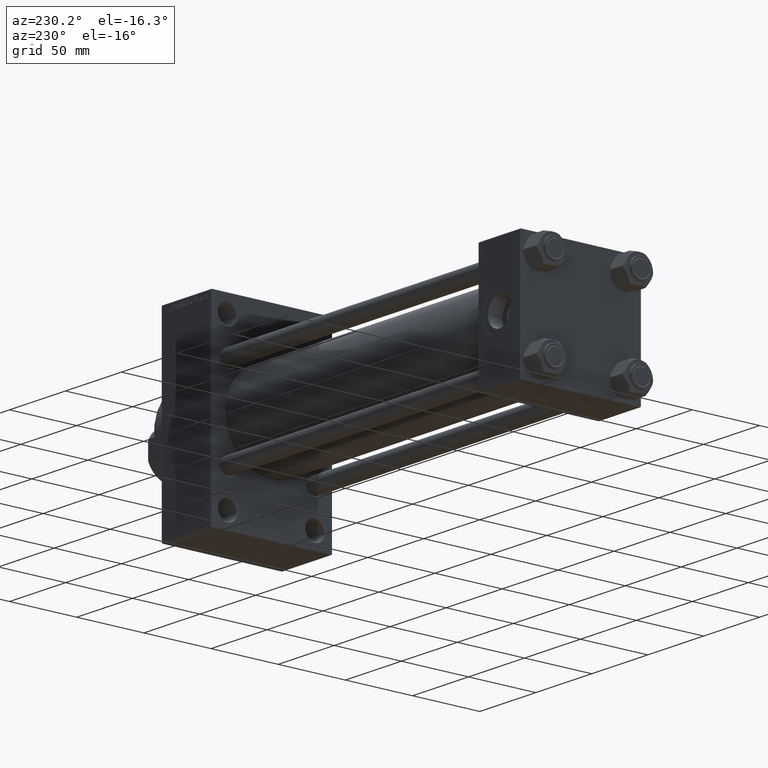
[diagram: clean part render]
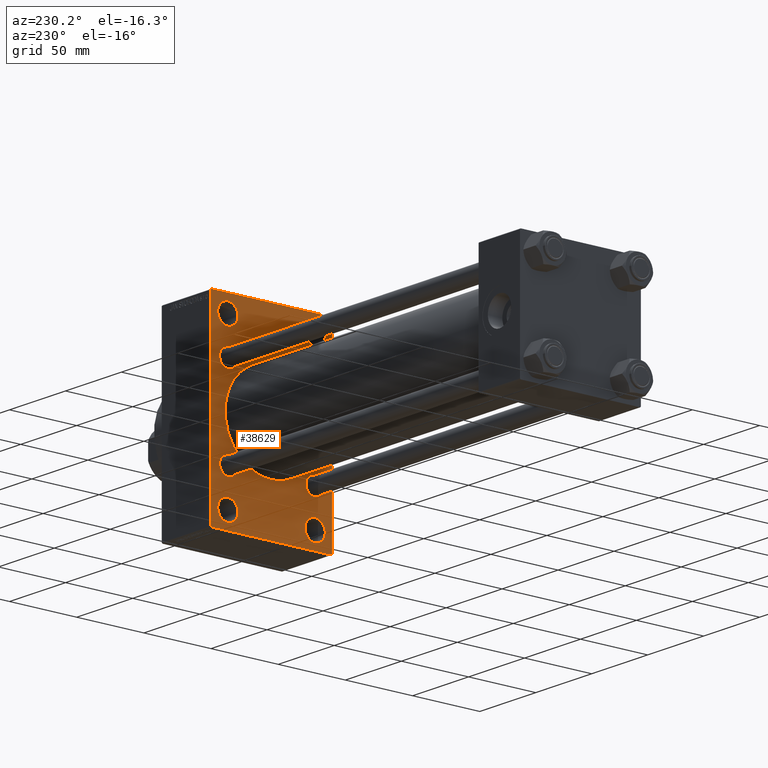
[diagram: same view with one face highlighted and labeled with its STEP entity id]
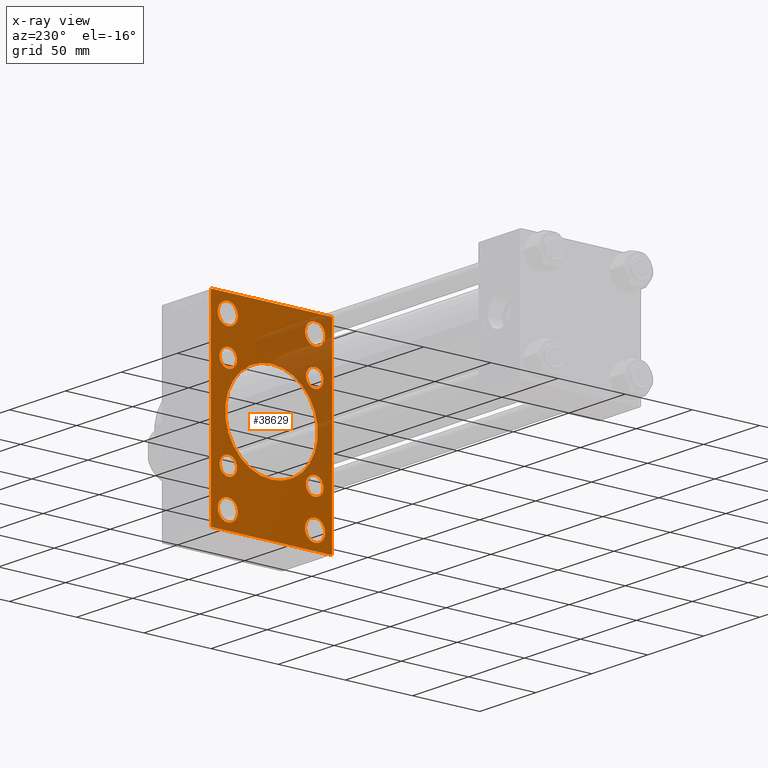
[diagram: x-ray of the same camera — body ghosted, the highlighted face saturated]
A machine part, auxiliary view. The second image highlights one B-rep face of the part: STEP entity #38629.
The next image is the same camera in x-ray: the body ghosted, the highlighted face saturated — about 25% of this face is hidden behind the body in this view.
In plain terms, the highlighted planar face has unit normal (-1, 0, 0).
Its self-contained STEP definition (entity closure, byte-faithful):
#186 = DIRECTION ( 'NONE',  ( -1.000000000000000000, 0.000000000000000000, -0.000000000000000000 ) ) ;
#264 = ORIENTED_EDGE ( 'NONE', *, *, #7171, .T. ) ;
#275 = DIRECTION ( 'NONE',  ( 0.000000000000000000, -4.886545002751570165E-17, -1.000000000000000000 ) ) ;
#543 = AXIS2_PLACEMENT_3D ( 'NONE', #21102, #35903, #28283 ) ;
#576 = VERTEX_POINT ( 'NONE', #39814 ) ;
#577 = LINE ( 'NONE', #11983, #27817 ) ;
#897 = FACE_BOUND ( 'NONE', #25571, .T. ) ;
#931 = VERTEX_POINT ( 'NONE', #36399 ) ;
#1107 = VERTEX_POINT ( 'NONE', #11313 ) ;
#1813 = AXIS2_PLACEMENT_3D ( 'NONE', #32994, #47097, #29172 ) ;
#1970 = ORIENTED_EDGE ( 'NONE', *, *, #47030, .T. ) ;
#2045 = DIRECTION ( 'NONE',  ( 0.000000000000000000, -0.7071067811865965336, 0.7071067811864985009 ) ) ;
#2375 = VERTEX_POINT ( 'NONE', #10046 ) ;
#2400 = VERTEX_POINT ( 'NONE', #35811 ) ;
#2835 = DIRECTION ( 'NONE',  ( 0.000000000000000000, -1.000000000000000000, -1.541976423090495633E-16 ) ) ;
#2862 = EDGE_CURVE ( 'NONE', #931, #18170, #14224, .T. ) ;
#2944 = VECTOR ( 'NONE', #21779, 1000.000000000000000 ) ;
#3114 = CARTESIAN_POINT ( 'NONE',  ( 275.9999999999999432, -44.49999999999995026, 70.99999999999998579 ) ) ;
#3700 = VERTEX_POINT ( 'NONE', #33066 ) ;
#3742 = FACE_BOUND ( 'NONE', #46012, .T. ) ;
#3999 = ORIENTED_EDGE ( 'NONE', *, *, #41740, .T. ) ;
#4213 = FACE_BOUND ( 'NONE', #23040, .T. ) ;
#4216 = DIRECTION ( 'NONE',  ( 1.000000000000000000, 0.000000000000000000, 0.000000000000000000 ) ) ;
#4254 = DIRECTION ( 'NONE',  ( 0.000000000000000000, 0.000000000000000000, 1.000000000000000000 ) ) ;
#4531 = CIRCLE ( 'NONE', #30439, 7.500000000000062172 ) ;
#4705 = ORIENTED_EDGE ( 'NONE', *, *, #30532, .T. ) ;
#4958 = CARTESIAN_POINT ( 'NONE',  ( 275.9999999999999432, 32.50000000000000711, 50.99999999999995026 ) ) ;
#5371 = DIRECTION ( 'NONE',  ( 0.000000000000000000, 0.000000000000000000, 1.000000000000000000 ) ) ;
#5449 = ORIENTED_EDGE ( 'NONE', *, *, #12043, .T. ) ;
#5527 = EDGE_CURVE ( 'NONE', #2400, #18471, #8987, .T. ) ;
#6086 = CARTESIAN_POINT ( 'NONE',  ( 275.9999999999999432, -32.50000000000000000, 58.50000000000000711 ) ) ;
#6391 = EDGE_LOOP ( 'NONE', ( #1970, #9623 ) ) ;
#6782 = AXIS2_PLACEMENT_3D ( 'NONE', #12503, #23038, #23729 ) ;
#7171 = EDGE_CURVE ( 'NONE', #20823, #13298, #42474, .T. ) ;
#7305 = FACE_BOUND ( 'NONE', #19551, .T. ) ;
#7542 = FACE_BOUND ( 'NONE', #22221, .T. ) ;
#8001 = ORIENTED_EDGE ( 'NONE', *, *, #30211, .T. ) ;
#8415 = CARTESIAN_POINT ( 'NONE',  ( 275.9999999999999432, -44.49999999999988631, -71.00000000000000000 ) ) ;
#8492 = LINE ( 'NONE', #33574, #43242 ) ;
#8681 = DIRECTION ( 'NONE',  ( 0.000000000000000000, 0.000000000000000000, 1.000000000000000000 ) ) ;
#8987 = CIRCLE ( 'NONE', #29611, 6.500000000000005329 ) ;
#9018 = CARTESIAN_POINT ( 'NONE',  ( 275.9999999999999432, -32.14999999999997726, 32.15000000000001279 ) ) ;
#9261 = DIRECTION ( 'NONE',  ( 1.000000000000000000, -0.000000000000000000, 0.000000000000000000 ) ) ;
#9623 = ORIENTED_EDGE ( 'NONE', *, *, #24052, .T. ) ;
#9785 = CARTESIAN_POINT ( 'NONE',  ( 275.9999999999999432, 45.00000000000002132, 70.50000000000000000 ) ) ;
#10046 = CARTESIAN_POINT ( 'NONE',  ( 275.9999999999999432, 32.50000000000000711, 66.00000000000007105 ) ) ;
#10120 = VERTEX_POINT ( 'NONE', #10768 ) ;
#10480 = VERTEX_POINT ( 'NONE', #3114 ) ;
#10583 = LINE ( 'NONE', #39705, #19820 ) ;
#10768 = CARTESIAN_POINT ( 'NONE',  ( 275.9999999999999432, -32.14999999999997726, -25.65000000000000568 ) ) ;
#11313 = CARTESIAN_POINT ( 'NONE',  ( 275.9999999999999432, 44.49999999999996447, 71.00000000000000000 ) ) ;
#11327 = DIRECTION ( 'NONE',  ( 1.000000000000000000, -0.000000000000000000, 0.000000000000000000 ) ) ;
#11477 = CARTESIAN_POINT ( 'NONE',  ( 275.9999999999999432, 57.74999999999750599, 57.75000000000390799 ) ) ;
#11832 = FACE_OUTER_BOUND ( 'NONE', #19151, .T. ) ;
#11888 = CIRCLE ( 'NONE', #44688, 34.50000000000000000 ) ;
#11983 = CARTESIAN_POINT ( 'NONE',  ( 275.9999999999999432, 45.00000000000002132, 71.00000000000000000 ) ) ;
#11990 = CIRCLE ( 'NONE', #31785, 6.500000000000005329 ) ;
#12043 = EDGE_CURVE ( 'NONE', #42578, #42333, #27328, .T. ) ;
#12103 = EDGE_CURVE ( 'NONE', #39510, #576, #4531, .T. ) ;
#12503 = CARTESIAN_POINT ( 'NONE',  ( 275.9999999999999432, 32.14999999999999147, 32.15000000000000568 ) ) ;
#12596 = ORIENTED_EDGE ( 'NONE', *, *, #12103, .T. ) ;
#12892 = AXIS2_PLACEMENT_3D ( 'NONE', #22577, #186, #36894 ) ;
#13298 = VERTEX_POINT ( 'NONE', #19665 ) ;
#13791 = EDGE_LOOP ( 'NONE', ( #4705, #8001 ) ) ;
#13793 = DIRECTION ( 'NONE',  ( 1.000000000000000000, -0.000000000000000000, 0.000000000000000000 ) ) ;
#13840 = ORIENTED_EDGE ( 'NONE', *, *, #28142, .T. ) ;
#14077 = EDGE_CURVE ( 'NONE', #17469, #23012, #10583, .T. ) ;
#14079 = DIRECTION ( 'NONE',  ( 0.000000000000000000, 0.000000000000000000, 1.000000000000000000 ) ) ;
#14224 = CIRCLE ( 'NONE', #30977, 6.499999999999999112 ) ;
#14287 = EDGE_CURVE ( 'NONE', #13298, #20823, #31250, .T. ) ;
#14471 = FACE_BOUND ( 'NONE', #6391, .T. ) ;
#14708 = DIRECTION ( 'NONE',  ( 0.000000000000000000, 0.000000000000000000, -1.000000000000000000 ) ) ;
#14803 = EDGE_CURVE ( 'NONE', #3700, #24001, #17567, .T. ) ;
#14848 = CARTESIAN_POINT ( 'NONE',  ( 275.9999999999999432, 32.50000000000000711, 58.50000000000000711 ) ) ;
#14905 = ORIENTED_EDGE ( 'NONE', *, *, #32784, .T. ) ;
#15244 = ORIENTED_EDGE ( 'NONE', *, *, #28568, .T. ) ;
#15386 = CARTESIAN_POINT ( 'NONE',  ( 275.9999999999999432, 32.50000000000000711, -58.50000000000000000 ) ) ;
#15764 = AXIS2_PLACEMENT_3D ( 'NONE', #28172, #35546, #42733 ) ;
#16030 = VECTOR ( 'NONE', #275, 1000.000000000000000 ) ;
#16346 = CARTESIAN_POINT ( 'NONE',  ( 275.9999999999999432, -57.74999999999687361, -57.75000000000488853 ) ) ;
#16560 = DIRECTION ( 'NONE',  ( 1.000000000000000000, -0.000000000000000000, 0.000000000000000000 ) ) ;
#16752 = ORIENTED_EDGE ( 'NONE', *, *, #44456, .T. ) ;
#17076 = ORIENTED_EDGE ( 'NONE', *, *, #21426, .F. ) ;
#17469 = VERTEX_POINT ( 'NONE', #36000 ) ;
#17567 = CIRCLE ( 'NONE', #43475, 7.500000000000062172 ) ;
#17620 = DIRECTION ( 'NONE',  ( 0.000000000000000000, 0.000000000000000000, 1.000000000000000000 ) ) ;
#18170 = VERTEX_POINT ( 'NONE', #42605 ) ;
#18322 = CIRCLE ( 'NONE', #19080, 6.500000000000005329 ) ;
#18471 = VERTEX_POINT ( 'NONE', #32266 ) ;
#18568 = DIRECTION ( 'NONE',  ( 1.000000000000000000, -0.000000000000000000, 0.000000000000000000 ) ) ;
#18759 = FACE_BOUND ( 'NONE', #28117, .T. ) ;
#18970 = DIRECTION ( 'NONE',  ( 0.000000000000000000, 0.000000000000000000, 1.000000000000000000 ) ) ;
#19080 = AXIS2_PLACEMENT_3D ( 'NONE', #42693, #13793, #17620 ) ;
#19151 = EDGE_LOOP ( 'NONE', ( #13840, #5449, #32304, #14905, #17076, #34782, #16752, #20280 ) ) ;
#19443 = AXIS2_PLACEMENT_3D ( 'NONE', #15386, #11327, #18970 ) ;
#19551 = EDGE_LOOP ( 'NONE', ( #27137, #264 ) ) ;
#19589 = VERTEX_POINT ( 'NONE', #33697 ) ;
#19665 = CARTESIAN_POINT ( 'NONE',  ( 275.9999999999999432, -32.50000000000000000, -50.99999999999992184 ) ) ;
#19820 = VECTOR ( 'NONE', #45945, 999.9999999999998863 ) ;
#19844 = DIRECTION ( 'NONE',  ( 0.000000000000000000, 0.000000000000000000, 1.000000000000000000 ) ) ;
#20134 = CARTESIAN_POINT ( 'NONE',  ( 275.9999999999999432, 32.14999999999999147, -32.15000000000000568 ) ) ;
#20280 = ORIENTED_EDGE ( 'NONE', *, *, #14077, .T. ) ;
#20638 = CARTESIAN_POINT ( 'NONE',  ( 275.9999999999999432, -32.14999999999997726, -38.65000000000001990 ) ) ;
#20823 = VERTEX_POINT ( 'NONE', #39863 ) ;
#21102 = CARTESIAN_POINT ( 'NONE',  ( 275.9999999999999432, -32.50000000000000000, 58.50000000000000711 ) ) ;
#21426 = EDGE_CURVE ( 'NONE', #1107, #10480, #577, .T. ) ;
#21773 = ORIENTED_EDGE ( 'NONE', *, *, #31584, .T. ) ;
#21779 = DIRECTION ( 'NONE',  ( 0.000000000000000000, 0.000000000000000000, -1.000000000000000000 ) ) ;
#21902 = CARTESIAN_POINT ( 'NONE',  ( 275.9999999999999432, 32.14999999999999147, 32.15000000000000568 ) ) ;
#22221 = EDGE_LOOP ( 'NONE', ( #12596, #21773 ) ) ;
#22316 = DIRECTION ( 'NONE',  ( 0.000000000000000000, 0.000000000000000000, 1.000000000000000000 ) ) ;
#22463 = VECTOR ( 'NONE', #37239, 1000.000000000000000 ) ;
#22577 = CARTESIAN_POINT ( 'NONE',  ( 275.9999999999999432, 0.000000000000000000, 0.000000000000000000 ) ) ;
#22734 = EDGE_CURVE ( 'NONE', #1107, #43507, #26271, .T. ) ;
#22832 = DIRECTION ( 'NONE',  ( -0.000000000000000000, 0.7071067811865426878, 0.7071067811865524577 ) ) ;
#23012 = VERTEX_POINT ( 'NONE', #25495 ) ;
#23038 = DIRECTION ( 'NONE',  ( 1.000000000000000000, -0.000000000000000000, 0.000000000000000000 ) ) ;
#23040 = EDGE_LOOP ( 'NONE', ( #41154, #3999 ) ) ;
#23101 = DIRECTION ( 'NONE',  ( 1.000000000000000000, 0.000000000000000000, 0.000000000000000000 ) ) ;
#23571 = EDGE_CURVE ( 'NONE', #2375, #36125, #26282, .T. ) ;
#23670 = CARTESIAN_POINT ( 'NONE',  ( 275.9999999999999432, -32.50000000000000000, -58.49999999999999289 ) ) ;
#23729 = DIRECTION ( 'NONE',  ( 0.000000000000000000, 0.000000000000000000, 1.000000000000000000 ) ) ;
#24001 = VERTEX_POINT ( 'NONE', #39673 ) ;
#24052 = EDGE_CURVE ( 'NONE', #35418, #39195, #40795, .T. ) ;
#24079 = CARTESIAN_POINT ( 'NONE',  ( 275.9999999999999432, 32.50000000000000711, 58.50000000000000711 ) ) ;
#24437 = CARTESIAN_POINT ( 'NONE',  ( 275.9999999999999432, -44.99999999999997158, -70.50000000000000000 ) ) ;
#25495 = CARTESIAN_POINT ( 'NONE',  ( 275.9999999999999432, 44.50000000000001421, -70.99999999999998579 ) ) ;
#25571 = EDGE_LOOP ( 'NONE', ( #40732, #44681 ) ) ;
#25830 = DIRECTION ( 'NONE',  ( 1.000000000000000000, -0.000000000000000000, 0.000000000000000000 ) ) ;
#25923 = PLANE ( 'NONE',  #12892 ) ;
#25991 = CARTESIAN_POINT ( 'NONE',  ( 275.9999999999999432, -32.50000000000000000, 66.00000000000007105 ) ) ;
#26218 = DIRECTION ( 'NONE',  ( 0.000000000000000000, 0.000000000000000000, 1.000000000000000000 ) ) ;
#26271 = LINE ( 'NONE', #11477, #22463 ) ;
#26282 = CIRCLE ( 'NONE', #30099, 7.500000000000062172 ) ;
#26909 = CARTESIAN_POINT ( 'NONE',  ( 275.9999999999999432, 32.50000000000000711, -58.50000000000000000 ) ) ;
#27137 = ORIENTED_EDGE ( 'NONE', *, *, #14287, .T. ) ;
#27140 = CIRCLE ( 'NONE', #40104, 34.50000000000000000 ) ;
#27167 = DIRECTION ( 'NONE',  ( 0.000000000000000000, 0.000000000000000000, 1.000000000000000000 ) ) ;
#27328 = LINE ( 'NONE', #16346, #44942 ) ;
#27757 = CARTESIAN_POINT ( 'NONE',  ( 275.9999999999999432, 45.00000000000002132, 71.00000000000000000 ) ) ;
#27817 = VECTOR ( 'NONE', #40642, 1000.000000000000000 ) ;
#28117 = EDGE_LOOP ( 'NONE', ( #46813, #41173 ) ) ;
#28142 = EDGE_CURVE ( 'NONE', #23012, #42578, #34553, .T. ) ;
#28172 = CARTESIAN_POINT ( 'NONE',  ( 275.9999999999999432, 32.14999999999999147, -32.15000000000000568 ) ) ;
#28239 = LINE ( 'NONE', #27757, #16030 ) ;
#28283 = DIRECTION ( 'NONE',  ( 0.000000000000000000, 0.000000000000000000, 1.000000000000000000 ) ) ;
#28445 = ORIENTED_EDGE ( 'NONE', *, *, #5527, .T. ) ;
#28568 = EDGE_CURVE ( 'NONE', #24001, #3700, #46144, .T. ) ;
#29095 = CIRCLE ( 'NONE', #29863, 6.500000000000005329 ) ;
#29172 = DIRECTION ( 'NONE',  ( 0.000000000000000000, 0.000000000000000000, 1.000000000000000000 ) ) ;
#29390 = CARTESIAN_POINT ( 'NONE',  ( 275.9999999999999432, -32.14999999999997726, 38.65000000000002700 ) ) ;
#29424 = CARTESIAN_POINT ( 'NONE',  ( 275.9999999999999432, -2.602085213965210642E-15, 34.50000000000000000 ) ) ;
#29611 = AXIS2_PLACEMENT_3D ( 'NONE', #20134, #16560, #8681 ) ;
#29863 = AXIS2_PLACEMENT_3D ( 'NONE', #9018, #9261, #27167 ) ;
#30099 = AXIS2_PLACEMENT_3D ( 'NONE', #14848, #25830, #40395 ) ;
#30211 = EDGE_CURVE ( 'NONE', #19589, #45256, #11888, .T. ) ;
#30337 = CARTESIAN_POINT ( 'NONE',  ( 275.9999999999999432, -32.50000000000000000, -58.49999999999999289 ) ) ;
#30439 = AXIS2_PLACEMENT_3D ( 'NONE', #6086, #45725, #5371 ) ;
#30532 = EDGE_CURVE ( 'NONE', #45256, #19589, #27140, .T. ) ;
#30977 = AXIS2_PLACEMENT_3D ( 'NONE', #21902, #18568, #4254 ) ;
#31245 = DIRECTION ( 'NONE',  ( 0.000000000000000000, 0.000000000000000000, 1.000000000000000000 ) ) ;
#31250 = CIRCLE ( 'NONE', #32795, 7.500000000000069278 ) ;
#31510 = DIRECTION ( 'NONE',  ( 1.000000000000000000, -0.000000000000000000, 0.000000000000000000 ) ) ;
#31584 = EDGE_CURVE ( 'NONE', #576, #39510, #31750, .T. ) ;
#31722 = DIRECTION ( 'NONE',  ( 1.000000000000000000, -0.000000000000000000, 0.000000000000000000 ) ) ;
#31750 = CIRCLE ( 'NONE', #543, 7.500000000000062172 ) ;
#31785 = AXIS2_PLACEMENT_3D ( 'NONE', #39511, #40209, #22316 ) ;
#31942 = CARTESIAN_POINT ( 'NONE',  ( 275.9999999999999432, 45.00000000000001421, -70.99999999999998579 ) ) ;
#32266 = CARTESIAN_POINT ( 'NONE',  ( 275.9999999999999432, 32.14999999999999147, -25.64999999999999858 ) ) ;
#32304 = ORIENTED_EDGE ( 'NONE', *, *, #40314, .F. ) ;
#32369 = EDGE_CURVE ( 'NONE', #18471, #2400, #40168, .T. ) ;
#32406 = VECTOR ( 'NONE', #2835, 1000.000000000000000 ) ;
#32784 = EDGE_CURVE ( 'NONE', #43708, #10480, #8492, .T. ) ;
#32795 = AXIS2_PLACEMENT_3D ( 'NONE', #23670, #44950, #19844 ) ;
#32994 = CARTESIAN_POINT ( 'NONE',  ( 275.9999999999999432, -32.14999999999997726, 32.15000000000001279 ) ) ;
#33066 = CARTESIAN_POINT ( 'NONE',  ( 275.9999999999999432, 32.50000000000000711, -50.99999999999993605 ) ) ;
#33245 = LINE ( 'NONE', #44238, #2944 ) ;
#33326 = CARTESIAN_POINT ( 'NONE',  ( 275.9999999999999432, -2.602085213965210642E-15, 0.000000000000000000 ) ) ;
#33574 = CARTESIAN_POINT ( 'NONE',  ( 275.9999999999999432, -57.75000000000028422, 57.74999999999948841 ) ) ;
#33669 = EDGE_CURVE ( 'NONE', #10120, #46114, #11990, .T. ) ;
#33697 = CARTESIAN_POINT ( 'NONE',  ( 275.9999999999999432, 1.622946243093157097E-15, -34.50000000000000000 ) ) ;
#34553 = LINE ( 'NONE', #31942, #32406 ) ;
#34782 = ORIENTED_EDGE ( 'NONE', *, *, #22734, .T. ) ;
#34792 = ORIENTED_EDGE ( 'NONE', *, *, #14803, .T. ) ;
#35388 = EDGE_LOOP ( 'NONE', ( #34792, #15244 ) ) ;
#35418 = VERTEX_POINT ( 'NONE', #42416 ) ;
#35546 = DIRECTION ( 'NONE',  ( 1.000000000000000000, -0.000000000000000000, 0.000000000000000000 ) ) ;
#35811 = CARTESIAN_POINT ( 'NONE',  ( 275.9999999999999432, 32.14999999999999147, -38.65000000000001279 ) ) ;
#35903 = DIRECTION ( 'NONE',  ( 1.000000000000000000, -0.000000000000000000, 0.000000000000000000 ) ) ;
#36000 = CARTESIAN_POINT ( 'NONE',  ( 275.9999999999999432, 45.00000000000001421, -70.49999999999997158 ) ) ;
#36125 = VERTEX_POINT ( 'NONE', #4958 ) ;
#36399 = CARTESIAN_POINT ( 'NONE',  ( 275.9999999999999432, 32.14999999999999147, 25.65000000000000213 ) ) ;
#36894 = DIRECTION ( 'NONE',  ( -0.000000000000000000, 0.000000000000000000, 1.000000000000000000 ) ) ;
#37185 = DIRECTION ( 'NONE',  ( 1.000000000000000000, -0.000000000000000000, 0.000000000000000000 ) ) ;
#37239 = DIRECTION ( 'NONE',  ( 0.000000000000000000, 0.7071067811865867636, -0.7071067811865081598 ) ) ;
#37420 = CARTESIAN_POINT ( 'NONE',  ( 275.9999999999999432, -2.602085213965210642E-15, 0.000000000000000000 ) ) ;
#37896 = EDGE_CURVE ( 'NONE', #18170, #931, #44918, .T. ) ;
#38303 = ORIENTED_EDGE ( 'NONE', *, *, #32369, .T. ) ;
#38629 = ADVANCED_FACE ( 'NONE', ( #7542, #7305, #40483, #4213, #14471, #897, #3742, #18759, #44550, #11832 ), #25923, .T. ) ;
#39133 = CARTESIAN_POINT ( 'NONE',  ( 275.9999999999999432, -44.99999999999997158, 70.49999999999998579 ) ) ;
#39195 = VERTEX_POINT ( 'NONE', #29390 ) ;
#39510 = VERTEX_POINT ( 'NONE', #25991 ) ;
#39511 = CARTESIAN_POINT ( 'NONE',  ( 275.9999999999999432, -32.14999999999997726, -32.15000000000001279 ) ) ;
#39593 = CIRCLE ( 'NONE', #40336, 7.500000000000062172 ) ;
#39673 = CARTESIAN_POINT ( 'NONE',  ( 275.9999999999999432, 32.50000000000000711, -66.00000000000005684 ) ) ;
#39705 = CARTESIAN_POINT ( 'NONE',  ( 275.9999999999999432, 57.75000000000061817, -57.74999999999901235 ) ) ;
#39814 = CARTESIAN_POINT ( 'NONE',  ( 275.9999999999999432, -32.50000000000000000, 50.99999999999995026 ) ) ;
#39863 = CARTESIAN_POINT ( 'NONE',  ( 275.9999999999999432, -32.50000000000000000, -66.00000000000005684 ) ) ;
#40104 = AXIS2_PLACEMENT_3D ( 'NONE', #33326, #4216, #14708 ) ;
#40168 = CIRCLE ( 'NONE', #15764, 6.500000000000005329 ) ;
#40209 = DIRECTION ( 'NONE',  ( 1.000000000000000000, -0.000000000000000000, 0.000000000000000000 ) ) ;
#40304 = DIRECTION ( 'NONE',  ( 0.000000000000000000, 0.000000000000000000, -1.000000000000000000 ) ) ;
#40314 = EDGE_CURVE ( 'NONE', #43708, #42333, #33245, .T. ) ;
#40336 = AXIS2_PLACEMENT_3D ( 'NONE', #24079, #31722, #31245 ) ;
#40395 = DIRECTION ( 'NONE',  ( 0.000000000000000000, 0.000000000000000000, 1.000000000000000000 ) ) ;
#40483 = FACE_BOUND ( 'NONE', #35388, .T. ) ;
#40642 = DIRECTION ( 'NONE',  ( 0.000000000000000000, -1.000000000000000000, -1.541976423090495387E-16 ) ) ;
#40732 = ORIENTED_EDGE ( 'NONE', *, *, #37896, .T. ) ;
#40795 = CIRCLE ( 'NONE', #1813, 6.500000000000005329 ) ;
#41154 = ORIENTED_EDGE ( 'NONE', *, *, #23571, .T. ) ;
#41173 = ORIENTED_EDGE ( 'NONE', *, *, #44761, .T. ) ;
#41671 = AXIS2_PLACEMENT_3D ( 'NONE', #30337, #31510, #14079 ) ;
#41740 = EDGE_CURVE ( 'NONE', #36125, #2375, #39593, .T. ) ;
#42333 = VERTEX_POINT ( 'NONE', #24437 ) ;
#42416 = CARTESIAN_POINT ( 'NONE',  ( 275.9999999999999432, -32.14999999999997726, 25.65000000000000213 ) ) ;
#42474 = CIRCLE ( 'NONE', #41671, 7.500000000000069278 ) ;
#42578 = VERTEX_POINT ( 'NONE', #8415 ) ;
#42605 = CARTESIAN_POINT ( 'NONE',  ( 275.9999999999999432, 32.14999999999999147, 38.65000000000001279 ) ) ;
#42693 = CARTESIAN_POINT ( 'NONE',  ( 275.9999999999999432, -32.14999999999997726, -32.15000000000001279 ) ) ;
#42733 = DIRECTION ( 'NONE',  ( 0.000000000000000000, 0.000000000000000000, 1.000000000000000000 ) ) ;
#43242 = VECTOR ( 'NONE', #22832, 1000.000000000000000 ) ;
#43475 = AXIS2_PLACEMENT_3D ( 'NONE', #26909, #37185, #26218 ) ;
#43507 = VERTEX_POINT ( 'NONE', #9785 ) ;
#43708 = VERTEX_POINT ( 'NONE', #39133 ) ;
#44238 = CARTESIAN_POINT ( 'NONE',  ( 275.9999999999999432, -44.99999999999997158, 70.99999999999998579 ) ) ;
#44456 = EDGE_CURVE ( 'NONE', #43507, #17469, #28239, .T. ) ;
#44550 = FACE_BOUND ( 'NONE', #13791, .T. ) ;
#44681 = ORIENTED_EDGE ( 'NONE', *, *, #2862, .T. ) ;
#44688 = AXIS2_PLACEMENT_3D ( 'NONE', #37420, #23101, #40304 ) ;
#44761 = EDGE_CURVE ( 'NONE', #46114, #10120, #18322, .T. ) ;
#44918 = CIRCLE ( 'NONE', #6782, 6.499999999999999112 ) ;
#44942 = VECTOR ( 'NONE', #2045, 1000.000000000000114 ) ;
#44950 = DIRECTION ( 'NONE',  ( 1.000000000000000000, -0.000000000000000000, 0.000000000000000000 ) ) ;
#45256 = VERTEX_POINT ( 'NONE', #29424 ) ;
#45725 = DIRECTION ( 'NONE',  ( 1.000000000000000000, -0.000000000000000000, 0.000000000000000000 ) ) ;
#45945 = DIRECTION ( 'NONE',  ( -0.000000000000000000, -0.7071067811865376918, -0.7071067811865574537 ) ) ;
#46012 = EDGE_LOOP ( 'NONE', ( #38303, #28445 ) ) ;
#46114 = VERTEX_POINT ( 'NONE', #20638 ) ;
#46144 = CIRCLE ( 'NONE', #19443, 7.500000000000062172 ) ;
#46813 = ORIENTED_EDGE ( 'NONE', *, *, #33669, .T. ) ;
#47030 = EDGE_CURVE ( 'NONE', #39195, #35418, #29095, .T. ) ;
#47097 = DIRECTION ( 'NONE',  ( 1.000000000000000000, -0.000000000000000000, 0.000000000000000000 ) ) ;